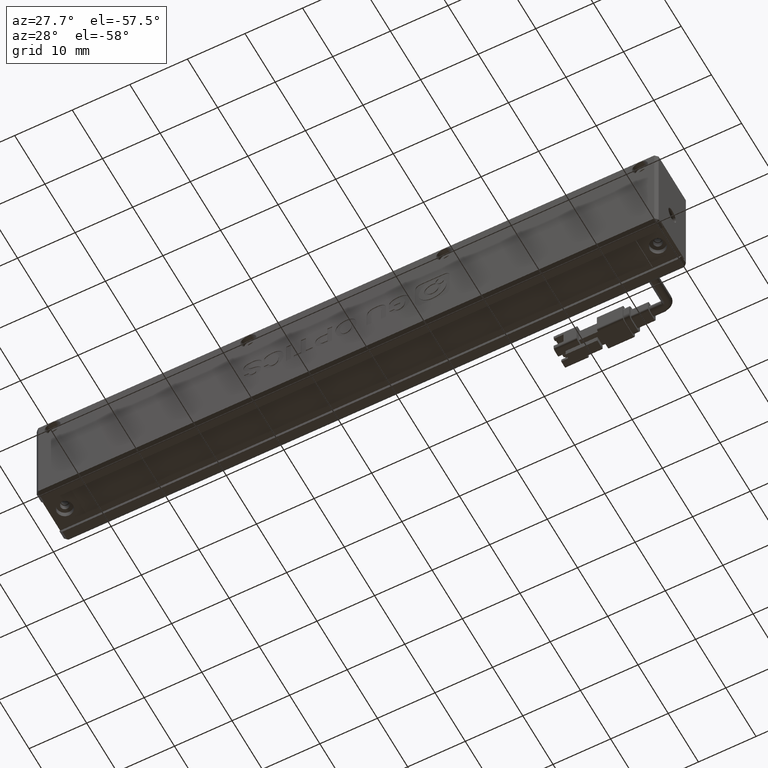
[diagram: clean part render]
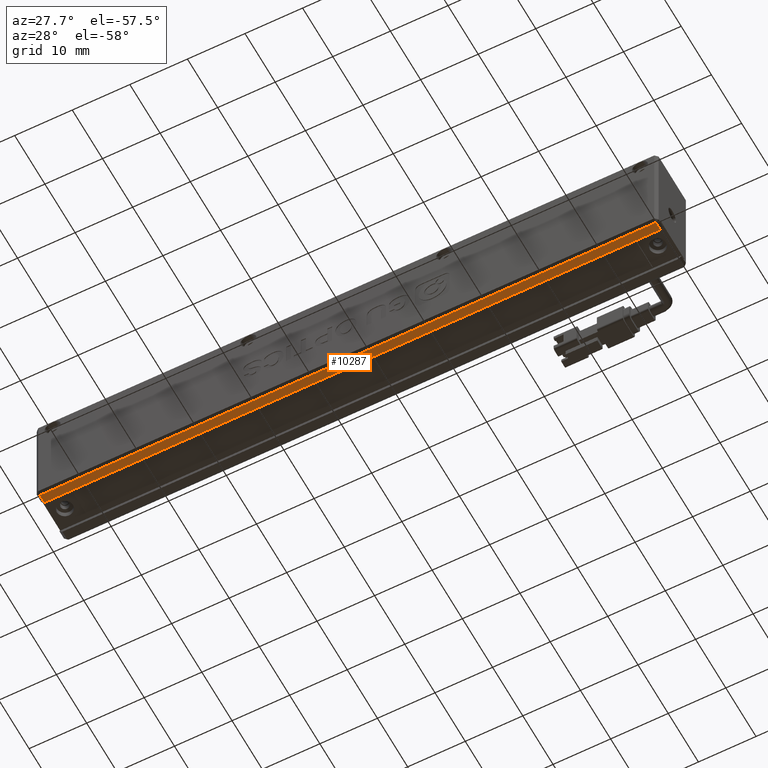
[diagram: same view with one face highlighted and labeled with its STEP entity id]
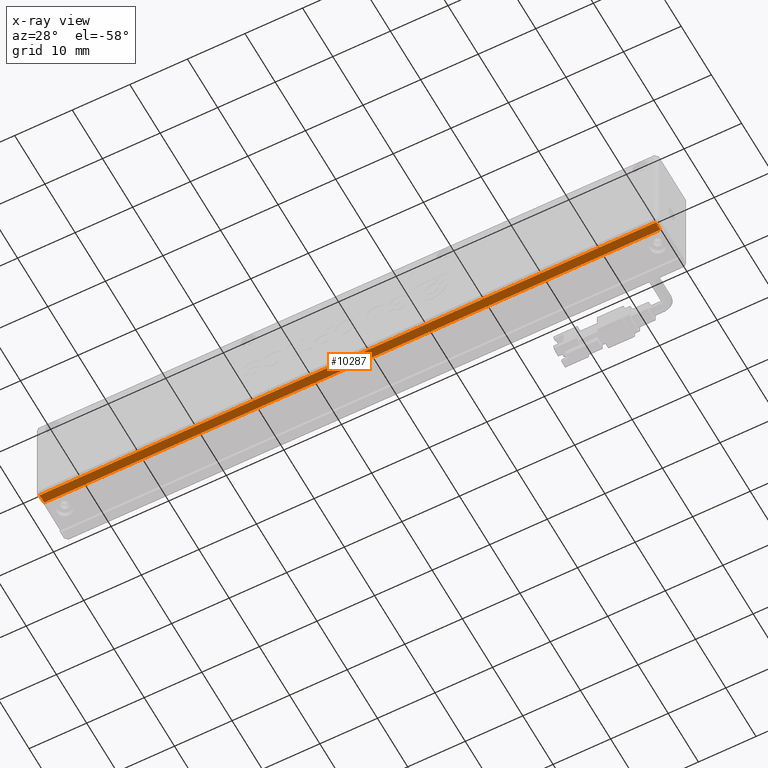
[diagram: x-ray of the same camera — body ghosted, the highlighted face saturated]
A machine part, auxiliary view. The second image highlights one B-rep face of the part: STEP entity #10287.
The next image is the same camera in x-ray: the body ghosted, the highlighted face saturated — about 0% of this face is hidden behind the body in this view.
In plain terms, the highlighted planar face has unit normal (0, 0, -1).
Its self-contained STEP definition (entity closure, byte-faithful):
#370 = CARTESIAN_POINT ( 'NONE',  ( 69.41164417057903800, 2.321478873239426500, -8.999999999999994700 ) ) ;
#1083 = LINE ( 'NONE', #10889, #14422 ) ;
#1174 = DIRECTION ( 'NONE',  ( 1.000000000000000000, 0.0000000000000000000, 0.0000000000000000000 ) ) ;
#1538 = DIRECTION ( 'NONE',  ( -1.000000000000000000, 0.0000000000000000000, -0.0000000000000000000 ) ) ;
#2173 = AXIS2_PLACEMENT_3D ( 'NONE', #11734, #10071, #1538 ) ;
#3572 = CARTESIAN_POINT ( 'NONE',  ( -37.58835582942096200, 2.321478873239426500, -9.000000000000001800 ) ) ;
#3631 = ORIENTED_EDGE ( 'NONE', *, *, #7452, .T. ) ;
#3830 = VERTEX_POINT ( 'NONE', #3572 ) ;
#4809 = EDGE_CURVE ( 'NONE', #3830, #8354, #1083, .T. ) ;
#5434 = LINE ( 'NONE', #9482, #13258 ) ;
#6699 = PLANE ( 'NONE',  #2173 ) ;
#6938 = CARTESIAN_POINT ( 'NONE',  ( 69.41164417057902400, 10.32147887323943000, -9.000000000000001800 ) ) ;
#7360 = FACE_OUTER_BOUND ( 'NONE', #14903, .T. ) ;
#7452 = EDGE_CURVE ( 'NONE', #18531, #3830, #19018, .T. ) ;
#7667 = ORIENTED_EDGE ( 'NONE', *, *, #9925, .T. ) ;
#7695 = ORIENTED_EDGE ( 'NONE', *, *, #4809, .T. ) ;
#8354 = VERTEX_POINT ( 'NONE', #370 ) ;
#9482 = CARTESIAN_POINT ( 'NONE',  ( -38.08835582942097600, 0.8214788732394430200, -9.000000000000001800 ) ) ;
#9925 = EDGE_CURVE ( 'NONE', #8354, #21332, #11727, .T. ) ;
#10071 = DIRECTION ( 'NONE',  ( 0.0000000000000000000, 0.0000000000000000000, -1.000000000000000000 ) ) ;
#10287 = ADVANCED_FACE ( 'NONE', ( #7360 ), #6699, .T. ) ;
#10889 = CARTESIAN_POINT ( 'NONE',  ( 69.91164417057902400, 2.321478873239426900, -9.000000000000001800 ) ) ;
#11195 = ORIENTED_EDGE ( 'NONE', *, *, #19412, .F. ) ;
#11727 = LINE ( 'NONE', #6938, #16713 ) ;
#11734 = CARTESIAN_POINT ( 'NONE',  ( 69.91164417057902400, 10.32147887323943000, -9.000000000000001800 ) ) ;
#13258 = VECTOR ( 'NONE', #1174, 1000.000000000000000 ) ;
#13807 = VECTOR ( 'NONE', #21127, 1000.000000000000000 ) ;
#14422 = VECTOR ( 'NONE', #17482, 1000.000000000000000 ) ;
#14903 = EDGE_LOOP ( 'NONE', ( #11195, #3631, #7695, #7667 ) ) ;
#16713 = VECTOR ( 'NONE', #20379, 1000.000000000000000 ) ;
#17482 = DIRECTION ( 'NONE',  ( 1.000000000000000000, -0.0000000000000000000, 0.0000000000000000000 ) ) ;
#17904 = CARTESIAN_POINT ( 'NONE',  ( 69.41164417057902400, 0.8214788732394430200, -9.000000000000001800 ) ) ;
#18531 = VERTEX_POINT ( 'NONE', #19954 ) ;
#19018 = LINE ( 'NONE', #21054, #13807 ) ;
#19412 = EDGE_CURVE ( 'NONE', #18531, #21332, #5434, .T. ) ;
#19954 = CARTESIAN_POINT ( 'NONE',  ( -37.58835582942096200, 0.8214788732394430200, -9.000000000000001800 ) ) ;
#20379 = DIRECTION ( 'NONE',  ( -0.0000000000000000000, -1.000000000000000000, -0.0000000000000000000 ) ) ;
#21054 = CARTESIAN_POINT ( 'NONE',  ( -37.58835582942096200, 10.32147887323943000, -9.000000000000001800 ) ) ;
#21127 = DIRECTION ( 'NONE',  ( 0.0000000000000000000, 1.000000000000000000, 0.0000000000000000000 ) ) ;
#21332 = VERTEX_POINT ( 'NONE', #17904 ) ;